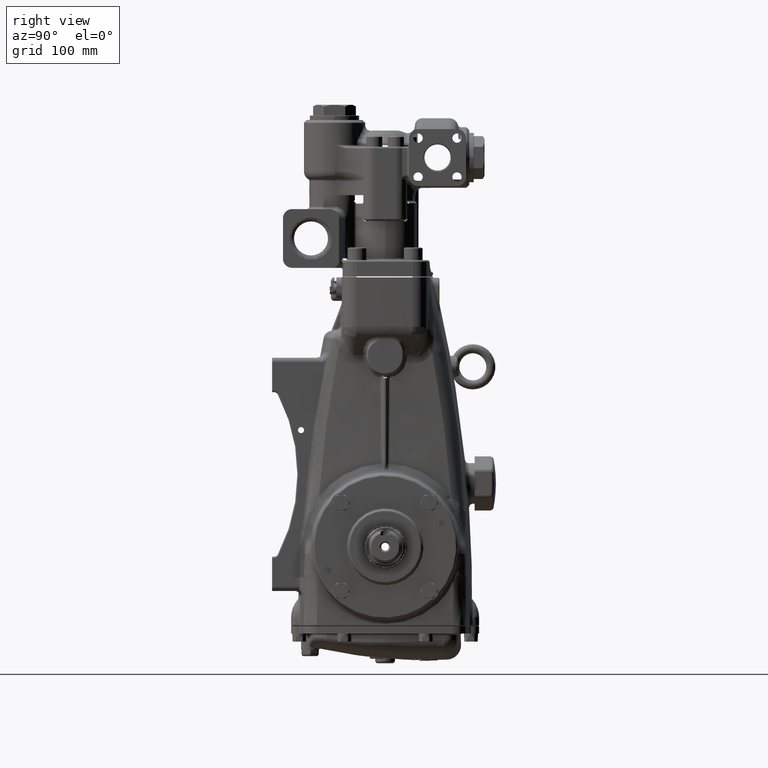
[diagram: clean part render]
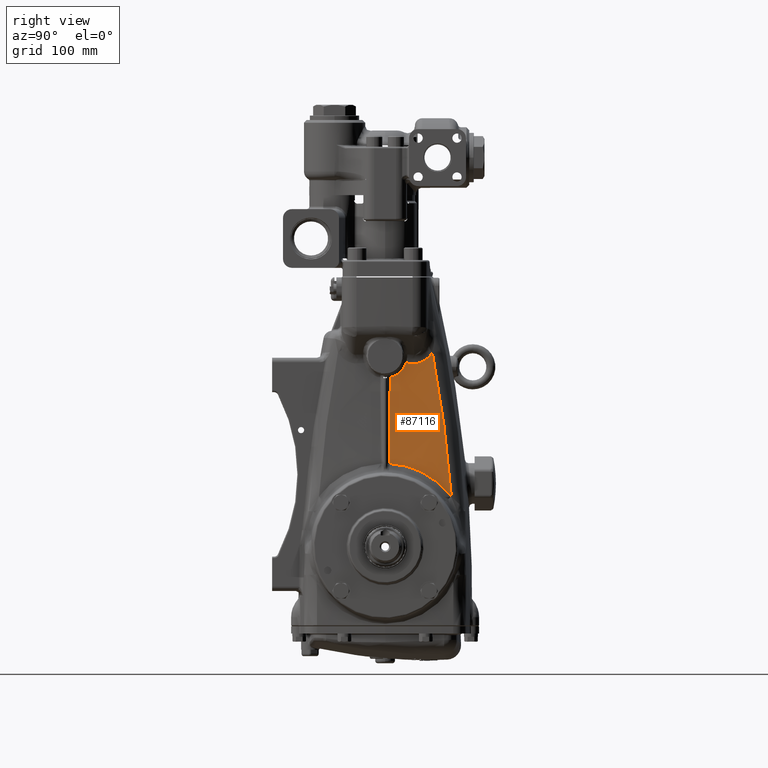
[diagram: same view with one face highlighted and labeled with its STEP entity id]
A machine part, right view. The second image highlights one B-rep face of the part: STEP entity #87116.
In plain terms, the highlighted face is a freeform B-spline surface patch.
Its self-contained STEP definition (entity closure, byte-faithful):
#1039 = B_SPLINE_CURVE_WITH_KNOTS ( 'NONE', 3,
 ( #45105, #85820, #126501, #35099 ),
 .UNSPECIFIED., .F., .F.,
 ( 4, 4 ),
 ( 0.01731557747049823279, 0.02595217692278705898 ),
 .UNSPECIFIED. ) ;
#1272 = B_SPLINE_CURVE_WITH_KNOTS ( 'NONE', 3,
 ( #37140, #77846, #118526, #27123, #67824, #108519, #17123, #57805, #98539, #7107, #47795, #88526, #129183, #37793, #78504, #119183, #27784, #68497, #109178, #17780 ),
 .UNSPECIFIED., .F., .F.,
 ( 4, 2, 2, 2, 2, 2, 2, 2, 2, 4 ),
 ( 0.002329065528260601450, 0.005465965124093025498, 0.008602864719925450848, 0.01017131451784164531, 0.01173976431575783977, 0.01487666391159022869, 0.01801356350742261761, 0.01958201330533878085, 0.02115046310325494755, 0.02742426229491953110 ),
 .UNSPECIFIED. ) ;
#2917 = CARTESIAN_POINT ( 'NONE',  ( 3.723598253900532118, 1.532344962810493039, 8.021244488250040661 ) ) ;
#3008 = CARTESIAN_POINT ( 'NONE',  ( 3.796797284644001458, -3.707321620861105949, 0.0000000000000000000 ) ) ;
#3011 = B_SPLINE_CURVE_WITH_KNOTS ( 'NONE', 3,
 ( #130990, #39597, #80303, #120986, #29590, #70298, #110998, #19584, #60293, #101016, #9588, #50282, #90998, #131654 ),
 .UNSPECIFIED., .F., .F.,
 ( 4, 2, 2, 2, 2, 2, 4 ),
 ( 0.0000000000000000000, 0.1250000000000000833, 0.1875000000000000555, 0.2500000000000000000, 0.3124999999999999445, 0.3750000000000001110, 0.4717552395138853716 ),
 .UNSPECIFIED. ) ;
#3653 = CARTESIAN_POINT ( 'NONE',  ( 3.548114066309885128, 2.506268747040624856, 11.77165354330709057 ) ) ;
#5795 = B_SPLINE_SURFACE_WITH_KNOTS ( 'NONE', 3, 1, ( 
 ( #94427, #3008 ),
 ( #43687, #84393 ),
 ( #125081, #33671 ),
 ( #74390, #115080 ),
 ( #23659, #64378 ),
 ( #105085, #13665 ),
 ( #54360, #95083 ),
 ( #3653, #44343 ),
 ( #85049, #125741 ),
 ( #34336, #75042 ) ),
 .UNSPECIFIED., .F., .F., .F.,
 ( 4, 2, 2, 2, 4 ),
 ( 2, 2 ),
 ( 0.0000000000000000000, 0.2500000000000000000, 0.5000000000000000000, 0.7500000000000000000, 1.000000000000000000 ),
 ( 0.0000000000000000000, 1.000000000000000000 ),
 .UNSPECIFIED. ) ;
#6173 = CARTESIAN_POINT ( 'NONE',  ( 3.897579778958996766, 0.1911960100756941172, 3.700911898809101430 ) ) ;
#7107 = CARTESIAN_POINT ( 'NONE',  ( 3.770743357319649380, 0.5882091019473552063, 7.538791223564354382 ) ) ;
#9588 = CARTESIAN_POINT ( 'NONE',  ( 3.890130700725569657, 0.9640668820166800046, 3.498227415428317055 ) ) ;
#10906 = CARTESIAN_POINT ( 'NONE',  ( 3.680044730410442888, 2.053194663346450621, 8.457199941519622399 ) ) ;
#12924 = CARTESIAN_POINT ( 'NONE',  ( 3.730105332427684051, 1.414329535216990230, 7.991008632347821106 ) ) ;
#13578 = CARTESIAN_POINT ( 'NONE',  ( 3.685140907735744431, 2.008548274893626306, 8.388609275366743390 ) ) ;
#13665 = CARTESIAN_POINT ( 'NONE',  ( 4.015748031496064741, 0.6200421058895375648, 0.0000000000000000000 ) ) ;
#14367 = ORIENTED_EDGE ( 'NONE', *, *, #120172, .F. ) ;
#17123 = CARTESIAN_POINT ( 'NONE',  ( 3.774654548920006292, 0.4860925308570703818, 7.470125152249214473 ) ) ;
#17249 = CARTESIAN_POINT ( 'NONE',  ( 3.780997444336503754, 0.2223176585675815109, 7.363752785689525737 ) ) ;
#17287 = CARTESIAN_POINT ( 'NONE',  ( 3.814269082362508279, 2.881727563546267135, 2.183157301090169256 ) ) ;
#17780 = CARTESIAN_POINT ( 'NONE',  ( 3.748393755315712284, 0.9113142139156809041, 7.999475861940470445 ) ) ;
#19584 = CARTESIAN_POINT ( 'NONE',  ( 3.875672771772225023, 1.489840276107599948, 3.306666949183420634 ) ) ;
#20980 = VERTEX_POINT ( 'NONE', #29489 ) ;
#22917 = CARTESIAN_POINT ( 'NONE',  ( 3.737246413980561233, 1.250827689957430655, 7.983334011769155580 ) ) ;
#23314 = ORIENTED_EDGE ( 'NONE', *, *, #31308, .F. ) ;
#23571 = CARTESIAN_POINT ( 'NONE',  ( 3.700873202376119497, 1.845088177050854705, 8.208289902020339923 ) ) ;
#23659 = CARTESIAN_POINT ( 'NONE',  ( 3.641732283464570230, -0.6274064368861355101, 11.77165354330708347 ) ) ;
#26846 = CARTESIAN_POINT ( 'NONE',  ( 3.808172675950928898, 0.2150632248943825653, 6.510060788404041787 ) ) ;
#27123 = CARTESIAN_POINT ( 'NONE',  ( 3.777935291468898615, 0.3774929401001666518, 7.414320324859057898 ) ) ;
#27288 = CARTESIAN_POINT ( 'NONE',  ( 3.764946817707797155, 2.685616327955809624, 4.284649282652233104 ) ) ;
#27784 = CARTESIAN_POINT ( 'NONE',  ( 3.759073172954852105, 0.7955784368693339381, 7.762163299121855431 ) ) ;
#29489 = CARTESIAN_POINT ( 'NONE',  ( 3.737246413980561233, 1.250827689957430655, 7.983334011769155580 ) ) ;
#29590 = CARTESIAN_POINT ( 'NONE',  ( 3.852467583058559075, 2.090385642667790478, 2.960055542058508848 ) ) ;
#29985 = ORIENTED_EDGE ( 'NONE', *, *, #84347, .F. ) ;
#31308 = EDGE_CURVE ( 'NONE', #120585, #131211, #44287, .T. ) ;
#33587 = CARTESIAN_POINT ( 'NONE',  ( 3.713889267219995016, 1.681184107335711886, 8.087944042120563282 ) ) ;
#33671 = CARTESIAN_POINT ( 'NONE',  ( 3.924311983438357299, -2.476928161784076377, -0.0000000000000000000 ) ) ;
#34336 = CARTESIAN_POINT ( 'NONE',  ( 3.417568248015753873, 3.751042474745048594, 11.77165354330708702 ) ) ;
#35099 = CARTESIAN_POINT ( 'NONE',  ( 3.737246413980561233, 1.250827689957430655, 7.983334011769155580 ) ) ;
#36858 = CARTESIAN_POINT ( 'NONE',  ( 3.872534344536055162, 0.1978818825397740122, 4.487886654012531729 ) ) ;
#37140 = CARTESIAN_POINT ( 'NONE',  ( 3.780997444336503754, 0.2223176585675815109, 7.363752785689525737 ) ) ;
#37302 = CARTESIAN_POINT ( 'NONE',  ( 3.720962081858113724, 2.409200364965605079, 6.377039946395764325 ) ) ;
#37793 = CARTESIAN_POINT ( 'NONE',  ( 3.762366642654819238, 0.7469393723837698396, 7.696034069038343972 ) ) ;
#39597 = CARTESIAN_POINT ( 'NONE',  ( 3.822527963246650007, 2.714837870769424288, 2.405829827662129272 ) ) ;
#41454 = B_SPLINE_CURVE_WITH_KNOTS ( 'NONE', 3,
 ( #97596, #6173, #46851, #87589, #128256, #36858, #77562, #118250, #26846, #67533 ),
 .UNSPECIFIED., .F., .F.,
 ( 4, 3, 3, 4 ),
 ( 0.0000000000000000000, 0.006000000000000226506, 0.03000000000002943021, 0.09508662804967588089 ),
 .UNSPECIFIED. ) ;
#43172 = VERTEX_POINT ( 'NONE', #50962 ) ;
#43608 = CARTESIAN_POINT ( 'NONE',  ( 3.721251741590871465, 1.570867440130811143, 8.035300269224494585 ) ) ;
#43687 = CARTESIAN_POINT ( 'NONE',  ( 3.492023689482936177, -3.130318220617592129, 11.77165354330708702 ) ) ;
#44287 = B_SPLINE_CURVE_WITH_KNOTS ( 'NONE', 3,
 ( #47294, #88031, #128690, #37302, #78003, #118685, #27288, #67993, #108684, #17287 ),
 .UNSPECIFIED., .F., .F.,
 ( 4, 2, 2, 2, 4 ),
 ( 0.08476750981346586888, 0.1249840975113978014, 0.1652006852093297340, 0.2054172729072616943, 0.2456338606051936269 ),
 .UNSPECIFIED. ) ;
#44343 = CARTESIAN_POINT ( 'NONE',  ( 3.924311983438356854, 2.476928161784071047, 0.0000000000000000000 ) ) ;
#45105 = CARTESIAN_POINT ( 'NONE',  ( 3.748393755315712284, 0.9113142139156809041, 7.999475861940470445 ) ) ;
#46851 = CARTESIAN_POINT ( 'NONE',  ( 3.895075288778032885, 0.1918645830104698524, 3.779609376145993238 ) ) ;
#47294 = CARTESIAN_POINT ( 'NONE',  ( 3.680044730410442888, 2.053194663346450621, 8.457199941519622399 ) ) ;
#47795 = CARTESIAN_POINT ( 'NONE',  ( 3.769318368709678513, 0.6197733963408524893, 7.564470096886240391 ) ) ;
#50152 = EDGE_CURVE ( 'NONE', #54649, #85404, #1272, .T. ) ;
#50282 = CARTESIAN_POINT ( 'NONE',  ( 3.896618762380430478, 0.6186767759533220445, 3.580105724036760861 ) ) ;
#50962 = CARTESIAN_POINT ( 'NONE',  ( 3.900084263422959996, 0.1905274403188320365, 3.622214371685400724 ) ) ;
#53609 = CARTESIAN_POINT ( 'NONE',  ( 3.728043860614591587, 1.454157673969535658, 7.998700912718393674 ) ) ;
#53696 = FACE_OUTER_BOUND ( 'NONE', #102629, .T. ) ;
#54272 = CARTESIAN_POINT ( 'NONE',  ( 3.680044730410442888, 2.053194663346450621, 8.457199941519622399 ) ) ;
#54360 = CARTESIAN_POINT ( 'NONE',  ( 3.622968540720541863, 1.254811875291648615, 11.77165354330708347 ) ) ;
#54649 = VERTEX_POINT ( 'NONE', #17249 ) ;
#57805 = CARTESIAN_POINT ( 'NONE',  ( 3.773409891457478516, 0.5209831632119074074, 7.491734781914430208 ) ) ;
#60293 = CARTESIAN_POINT ( 'NONE',  ( 3.879733431244371200, 1.362209989683996980, 3.361867222121225574 ) ) ;
#63629 = CARTESIAN_POINT ( 'NONE',  ( 3.735683296500350359, 1.291968450477900987, 7.981070543254713101 ) ) ;
#64288 = CARTESIAN_POINT ( 'NONE',  ( 3.698222915136726296, 1.874780925874372839, 8.236317404744104564 ) ) ;
#64378 = CARTESIAN_POINT ( 'NONE',  ( 4.015748031496065629, -0.6200421058895443371, 0.0000000000000000000 ) ) ;
#67533 = CARTESIAN_POINT ( 'NONE',  ( 3.780997444336503754, 0.2223176585675815109, 7.363752785689525737 ) ) ;
#67824 = CARTESIAN_POINT ( 'NONE',  ( 3.776933466327654365, 0.4144704050693630015, 7.431135478091151825 ) ) ;
#67993 = CARTESIAN_POINT ( 'NONE',  ( 3.788773721439311348, 2.794649350203434857, 3.235045082078513712 ) ) ;
#68497 = CARTESIAN_POINT ( 'NONE',  ( 3.754939931341117365, 0.8505913285577999527, 7.847891843103949938 ) ) ;
#69609 = ORIENTED_EDGE ( 'NONE', *, *, #127380, .F. ) ;
#70298 = CARTESIAN_POINT ( 'NONE',  ( 3.862223939831894715, 1.857725876448384827, 3.112877338165324304 ) ) ;
#74300 = CARTESIAN_POINT ( 'NONE',  ( 3.708778091017510992, 1.749470314369184987, 8.131591752081840596 ) ) ;
#74390 = CARTESIAN_POINT ( 'NONE',  ( 3.622968540720540975, -1.254811875291640400, 11.77165354330708702 ) ) ;
#75042 = CARTESIAN_POINT ( 'NONE',  ( 3.796797284644001458, 3.707321620861099287, 0.0000000000000000000 ) ) ;
#77562 = CARTESIAN_POINT ( 'NONE',  ( 3.862515616823473330, 0.2005563803984664328, 4.802676537199310758 ) ) ;
#77846 = CARTESIAN_POINT ( 'NONE',  ( 3.780409702901188496, 0.2623913758669057517, 7.373342612215266101 ) ) ;
#78003 = CARTESIAN_POINT ( 'NONE',  ( 3.731566814817936173, 2.485603129191050975, 5.854716524150104462 ) ) ;
#78504 = CARTESIAN_POINT ( 'NONE',  ( 3.761546061077517322, 0.7596846554282417063, 7.712249901229413673 ) ) ;
#78856 = ORIENTED_EDGE ( 'NONE', *, *, #50152, .F. ) ;
#80303 = CARTESIAN_POINT ( 'NONE',  ( 3.832305141141876703, 2.524570091765888424, 2.606943954562215282 ) ) ;
#84312 = CARTESIAN_POINT ( 'NONE',  ( 3.720045848257256704, 1.589920921144402755, 8.043114561013412711 ) ) ;
#84347 = EDGE_CURVE ( 'NONE', #131211, #43172, #3011, .T. ) ;
#84393 = CARTESIAN_POINT ( 'NONE',  ( 3.869527187446668570, -3.093730040150461491, 0.0000000000000000000 ) ) ;
#85049 = CARTESIAN_POINT ( 'NONE',  ( 3.492023689482935733, 3.130318220617600122, 11.77165354330708702 ) ) ;
#85404 = VERTEX_POINT ( 'NONE', #118207 ) ;
#85820 = CARTESIAN_POINT ( 'NONE',  ( 3.745260694221265840, 1.024525947110500379, 7.994939052954174841 ) ) ;
#87116 = ADVANCED_FACE ( 'NONE', ( #53696 ), #5795, .F. ) ;
#87589 = CARTESIAN_POINT ( 'NONE',  ( 3.892570777292546857, 0.1925331616698951476, 3.858306852756240968 ) ) ;
#88031 = CARTESIAN_POINT ( 'NONE',  ( 3.690115058314008323, 2.151184730222527097, 7.938748593144839383 ) ) ;
#88526 = CARTESIAN_POINT ( 'NONE',  ( 3.766336763381120889, 0.6794155713207951086, 7.619580191137494296 ) ) ;
#90998 = CARTESIAN_POINT ( 'NONE',  ( 3.899141885264461482, 0.4059779483920193388, 3.610828578765354457 ) ) ;
#92347 = EDGE_CURVE ( 'NONE', #85404, #20980, #1039, .T. ) ;
#94340 = CARTESIAN_POINT ( 'NONE',  ( 3.724736574159976055, 1.512920774022993520, 8.015010944263826431 ) ) ;
#94427 = CARTESIAN_POINT ( 'NONE',  ( 3.417568248015753873, -3.751042474745041044, 11.77165354330708702 ) ) ;
#95083 = CARTESIAN_POINT ( 'NONE',  ( 3.997422570790063912, 1.240083270499165558, 0.0000000000000000000 ) ) ;
#97269 = B_SPLINE_CURVE_WITH_KNOTS ( 'NONE', 3,
 ( #22917, #63629, #104338, #12924, #53609, #94340, #2917, #43608, #84312, #125000, #33587, #74300, #114992, #23571, #64288, #104999, #13578, #54272 ),
 .UNSPECIFIED., .F., .F.,
 ( 4, 2, 2, 2, 2, 2, 2, 2, 4 ),
 ( 6.938893903907228378E-18, 0.003139315955351391907, 0.006278631910702776875, 0.007848289888378469359, 0.009417947866054161843, 0.01255726382140552773, 0.01569657977675689015, 0.01883589573210825777, 0.02511452764281098607 ),
 .UNSPECIFIED. ) ;
#97596 = CARTESIAN_POINT ( 'NONE',  ( 3.900084263422959996, 0.1905274403188320365, 3.622214371685400724 ) ) ;
#98539 = CARTESIAN_POINT ( 'NONE',  ( 3.772757130843105156, 0.5381749237251004514, 7.503164468073761917 ) ) ;
#101016 = CARTESIAN_POINT ( 'NONE',  ( 3.886969114581195761, 1.099270514286047495, 3.457739138409424928 ) ) ;
#102629 = EDGE_LOOP ( 'NONE', ( #29985, #23314, #69609, #130662, #78856, #14367 ) ) ;
#104338 = CARTESIAN_POINT ( 'NONE',  ( 3.733922299676758261, 1.333328721851919196, 7.982173833637095761 ) ) ;
#104999 = CARTESIAN_POINT ( 'NONE',  ( 3.690335840694452862, 1.958854913898489203, 8.324391455311753063 ) ) ;
#105085 = CARTESIAN_POINT ( 'NONE',  ( 3.641732283464569786, 0.6274064368861428376, 11.77165354330708347 ) ) ;
#108519 = CARTESIAN_POINT ( 'NONE',  ( 3.775247254763608229, 0.4683819113088739106, 7.459929943147075804 ) ) ;
#108684 = CARTESIAN_POINT ( 'NONE',  ( 3.801213099687899444, 2.841866375676329604, 2.709332421064478247 ) ) ;
#109178 = CARTESIAN_POINT ( 'NONE',  ( 3.751624373794630429, 0.8855905037069110586, 7.921232832945513280 ) ) ;
#110998 = CARTESIAN_POINT ( 'NONE',  ( 3.866918325461963235, 1.737598555806212586, 3.182172200430620990 ) ) ;
#114992 = CARTESIAN_POINT ( 'NONE',  ( 3.706169998231956253, 1.782203648955109410, 8.155738790503091806 ) ) ;
#115080 = CARTESIAN_POINT ( 'NONE',  ( 3.997422570790063467, -1.240083270499171553, -0.0000000000000000000 ) ) ;
#118207 = CARTESIAN_POINT ( 'NONE',  ( 3.748393755315712284, 0.9113142139156809041, 7.999475861940470445 ) ) ;
#118250 = CARTESIAN_POINT ( 'NONE',  ( 3.835345399983635772, 0.2078094657046073157, 5.656368705560259613 ) ) ;
#118526 = CARTESIAN_POINT ( 'NONE',  ( 3.779673058254272355, 0.3014745340102622517, 7.385429307348075234 ) ) ;
#118685 = CARTESIAN_POINT ( 'NONE',  ( 3.753557971363301160, 2.623800068678024289, 4.808583868586544519 ) ) ;
#119183 = CARTESIAN_POINT ( 'NONE',  ( 3.759899130135716749, 0.7840040398620636841, 7.745319522350061270 ) ) ;
#120172 = EDGE_CURVE ( 'NONE', #43172, #54649, #41454, .T. ) ;
#120585 = VERTEX_POINT ( 'NONE', #10906 ) ;
#120986 = CARTESIAN_POINT ( 'NONE',  ( 3.847371969111097467, 2.203600569242905927, 2.875903721218489917 ) ) ;
#123689 = CARTESIAN_POINT ( 'NONE',  ( 3.814269082362508279, 2.881727563546267135, 2.183157301090169256 ) ) ;
#125000 = CARTESIAN_POINT ( 'NONE',  ( 3.716392442699359755, 1.645632981019724106, 8.068440496362375924 ) ) ;
#125081 = CARTESIAN_POINT ( 'NONE',  ( 3.548114066309883796, -2.506268747040617306, 11.77165354330708880 ) ) ;
#125741 = CARTESIAN_POINT ( 'NONE',  ( 3.869527187446669902, 3.093730040150455718, 0.0000000000000000000 ) ) ;
#126501 = CARTESIAN_POINT ( 'NONE',  ( 3.741544740261005586, 1.137697093964823436, 7.989558192820006788 ) ) ;
#127380 = EDGE_CURVE ( 'NONE', #20980, #120585, #97269, .T. ) ;
#128256 = CARTESIAN_POINT ( 'NONE',  ( 3.882552731350596531, 0.1952074763075978825, 4.173096759197417960 ) ) ;
#128690 = CARTESIAN_POINT ( 'NONE',  ( 3.700236916683070199, 2.241993115511200063, 7.419026472001160499 ) ) ;
#129183 = CARTESIAN_POINT ( 'NONE',  ( 3.764780063005185529, 0.7074933652507191528, 7.649011501012680903 ) ) ;
#130662 = ORIENTED_EDGE ( 'NONE', *, *, #92347, .F. ) ;
#130990 = CARTESIAN_POINT ( 'NONE',  ( 3.814269082362508279, 2.881727563546267135, 2.183157301090169256 ) ) ;
#131211 = VERTEX_POINT ( 'NONE', #123689 ) ;
#131654 = CARTESIAN_POINT ( 'NONE',  ( 3.900084263422959996, 0.1905274403188320365, 3.622214371685400724 ) ) ;